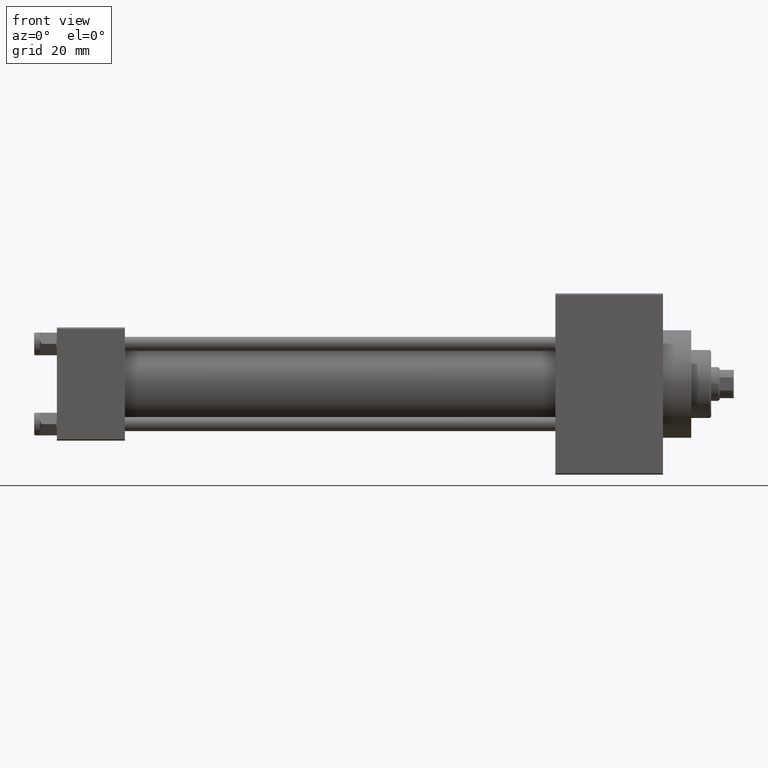
[diagram: clean part render]
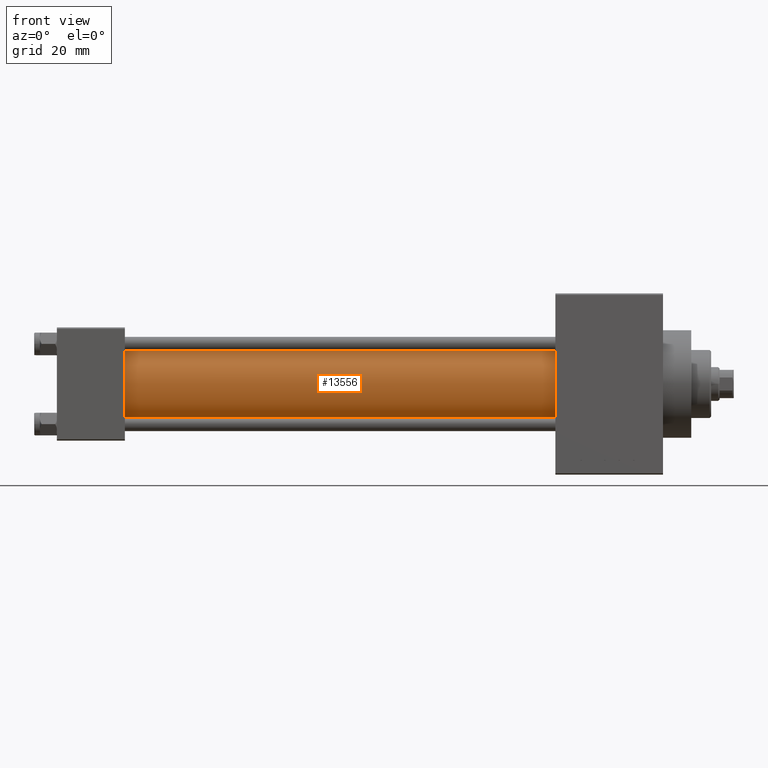
[diagram: same view with one face highlighted and labeled with its STEP entity id]
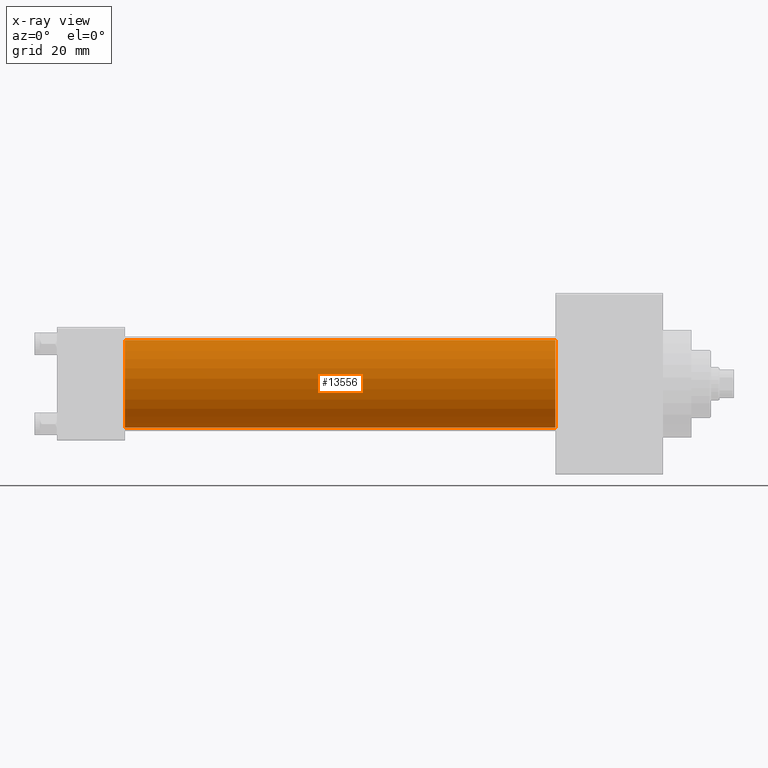
[diagram: x-ray of the same camera — body ghosted, the highlighted face saturated]
A machine part, front view. The second image highlights one B-rep face of the part: STEP entity #13556.
The next image is the same camera in x-ray: the body ghosted, the highlighted face saturated — about 0% of this face is hidden behind the body in this view.
In plain terms, the highlighted cylindrical surface (partial cylindrical patch) has radius 15.5 mm, axis along (-1, -0, -0).
Its self-contained STEP definition (entity closure, byte-faithful):
#631 = ORIENTED_EDGE ( 'NONE', *, *, #34318, .T. ) ;
#1519 = VECTOR ( 'NONE', #30545, 1000.000000000000000 ) ;
#2067 = VERTEX_POINT ( 'NONE', #29025 ) ;
#3689 = EDGE_CURVE ( 'NONE', #17970, #20311, #31378, .T. ) ;
#4934 = FACE_OUTER_BOUND ( 'NONE', #17416, .T. ) ;
#6590 = CARTESIAN_POINT ( 'NONE',  ( 176.0000000000000000, -7.038826752868131828E-16, -15.50000000000000000 ) ) ;
#8981 = LINE ( 'NONE', #37954, #1519 ) ;
#9615 = VECTOR ( 'NONE', #16389, 1000.000000000000000 ) ;
#10459 = CARTESIAN_POINT ( 'NONE',  ( 176.0000000000000000, -2.602085213965210642E-15, 0.000000000000000000 ) ) ;
#10721 = AXIS2_PLACEMENT_3D ( 'NONE', #20765, #27727, #17645 ) ;
#10880 = CARTESIAN_POINT ( 'NONE',  ( 23.99999999999999289, -7.038826752868131828E-16, -15.50000000000000000 ) ) ;
#13556 = ADVANCED_FACE ( 'NONE', ( #4934 ), #27824, .T. ) ;
#16389 = DIRECTION ( 'NONE',  ( -1.000000000000000000, -0.000000000000000000, -0.000000000000000000 ) ) ;
#16792 = AXIS2_PLACEMENT_3D ( 'NONE', #10459, #32250, #46812 ) ;
#17416 = EDGE_LOOP ( 'NONE', ( #34920, #31687, #631, #27763 ) ) ;
#17645 = DIRECTION ( 'NONE',  ( 0.000000000000000000, 0.000000000000000000, 1.000000000000000000 ) ) ;
#17970 = VERTEX_POINT ( 'NONE', #36497 ) ;
#19449 = EDGE_CURVE ( 'NONE', #2067, #20311, #35539, .T. ) ;
#20311 = VERTEX_POINT ( 'NONE', #10880 ) ;
#20666 = VERTEX_POINT ( 'NONE', #45942 ) ;
#20765 = CARTESIAN_POINT ( 'NONE',  ( 23.99999999999999289, -2.602085213965210642E-15, 0.000000000000000000 ) ) ;
#24697 = AXIS2_PLACEMENT_3D ( 'NONE', #45092, #27580, #42395 ) ;
#27580 = DIRECTION ( 'NONE',  ( -1.000000000000000000, -0.000000000000000000, -0.000000000000000000 ) ) ;
#27727 = DIRECTION ( 'NONE',  ( 1.000000000000000000, 0.000000000000000000, 0.000000000000000000 ) ) ;
#27763 = ORIENTED_EDGE ( 'NONE', *, *, #3689, .T. ) ;
#27824 = CYLINDRICAL_SURFACE ( 'NONE', #24697, 15.50000000000000000 ) ;
#29025 = CARTESIAN_POINT ( 'NONE',  ( 176.0000000000000000, -7.038826752868131828E-16, -15.50000000000000000 ) ) ;
#30545 = DIRECTION ( 'NONE',  ( -1.000000000000000000, -0.000000000000000000, -0.000000000000000000 ) ) ;
#31378 = CIRCLE ( 'NONE', #10721, 15.50000000000000000 ) ;
#31687 = ORIENTED_EDGE ( 'NONE', *, *, #34136, .F. ) ;
#32250 = DIRECTION ( 'NONE',  ( 1.000000000000000000, 0.000000000000000000, 0.000000000000000000 ) ) ;
#34136 = EDGE_CURVE ( 'NONE', #20666, #2067, #45038, .T. ) ;
#34318 = EDGE_CURVE ( 'NONE', #20666, #17970, #8981, .T. ) ;
#34920 = ORIENTED_EDGE ( 'NONE', *, *, #19449, .F. ) ;
#35539 = LINE ( 'NONE', #6590, #9615 ) ;
#36497 = CARTESIAN_POINT ( 'NONE',  ( 23.99999999999999289, -2.602085213965210642E-15, 15.50000000000000000 ) ) ;
#37954 = CARTESIAN_POINT ( 'NONE',  ( 176.0000000000000000, -2.602085213965210642E-15, 15.50000000000000000 ) ) ;
#42395 = DIRECTION ( 'NONE',  ( 0.000000000000000000, 0.000000000000000000, 1.000000000000000000 ) ) ;
#45038 = CIRCLE ( 'NONE', #16792, 15.50000000000000000 ) ;
#45092 = CARTESIAN_POINT ( 'NONE',  ( 176.0000000000000000, -2.602085213965210642E-15, 0.000000000000000000 ) ) ;
#45942 = CARTESIAN_POINT ( 'NONE',  ( 176.0000000000000000, -2.602085213965210642E-15, 15.50000000000000000 ) ) ;
#46812 = DIRECTION ( 'NONE',  ( 0.000000000000000000, 0.000000000000000000, -1.000000000000000000 ) ) ;